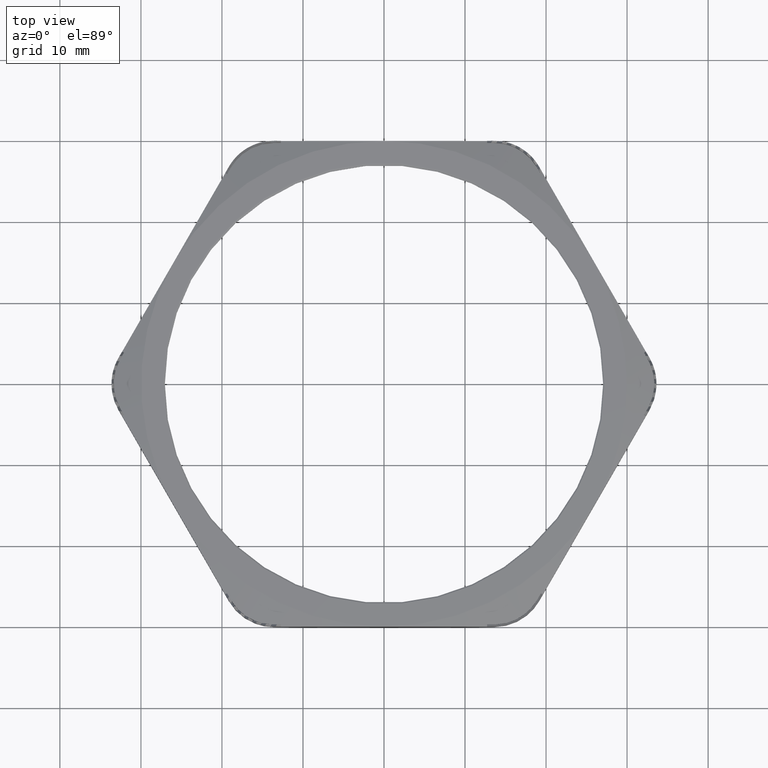
[diagram: clean part render]
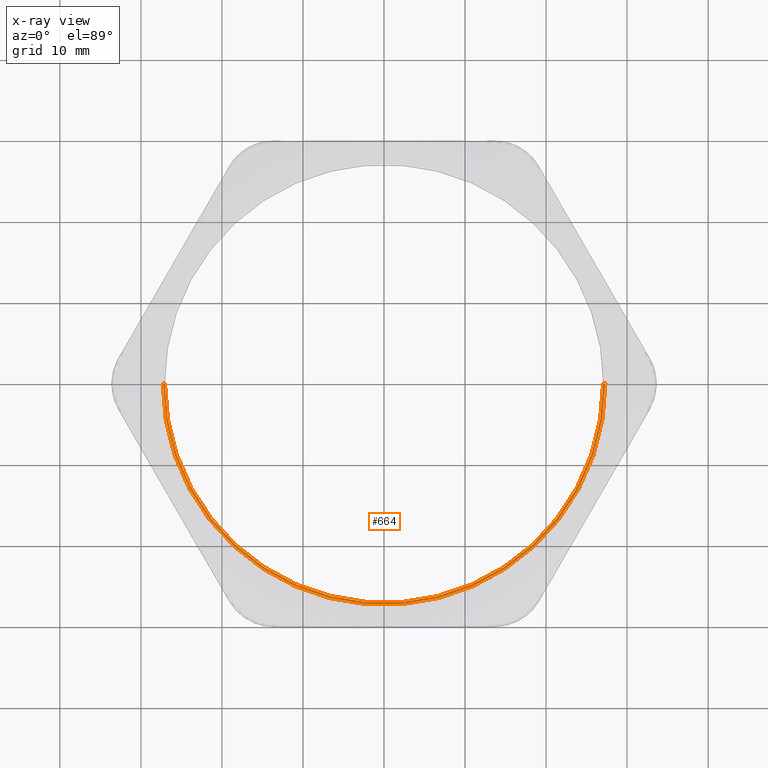
[diagram: x-ray — body ghosted, one internal face saturated and labeled with its STEP entity id]
A machine part, top view, then the same camera in x-ray: the body is ghosted and one INTERNAL B-rep face — a face not visible from any outside direction — is saturated and labeled: STEP entity #664.
In plain terms, the highlighted conical surface has half-angle 60 deg.
Its self-contained STEP definition (entity closure, byte-faithful):
#625 = EDGE_LOOP ( 'NONE', ( #665, #669, #672, #675 ) ) ;
#664 = ADVANCED_FACE ( 'NONE', ( #3998 ), #3997, .F. ) ;
#665 = ORIENTED_EDGE ( 'NONE', *, *, #666, .F. ) ;
#666 = EDGE_CURVE ( 'NONE', #667, #668, #3992, .T. ) ;
#667 = VERTEX_POINT ( 'NONE', #3987 ) ;
#668 = VERTEX_POINT ( 'NONE', #3986 ) ;
#669 = ORIENTED_EDGE ( 'NONE', *, *, #670, .T. ) ;
#670 = EDGE_CURVE ( 'NONE', #667, #671, #3985, .T. ) ;
#671 = VERTEX_POINT ( 'NONE', #3981 ) ;
#672 = ORIENTED_EDGE ( 'NONE', *, *, #673, .T. ) ;
#673 = EDGE_CURVE ( 'NONE', #671, #674, #3980, .T. ) ;
#674 = VERTEX_POINT ( 'NONE', #3975 ) ;
#675 = ORIENTED_EDGE ( 'NONE', *, *, #676, .F. ) ;
#676 = EDGE_CURVE ( 'NONE', #668, #674, #3974, .T. ) ;
#3971 = DIRECTION ( 'NONE',  ( 0.8660254037844366000, 0.0000000000000000000, 0.5000000000000033300 ) ) ;
#3972 = VECTOR ( 'NONE', #3971, 39.37007874015748100 ) ;
#3973 = CARTESIAN_POINT ( 'NONE',  ( 1.064999999999999900, 0.0000000000000000000, 0.1644529946162076000 ) ) ;
#3974 = LINE ( 'NONE', #3973, #3972 ) ;
#3975 = CARTESIAN_POINT ( 'NONE',  ( 1.075000000000000000, 1.316495309083404900E-016, 0.1702264973081039400 ) ) ;
#3976 = DIRECTION ( 'NONE',  ( 1.000000000000000000, 0.0000000000000000000, 0.0000000000000000000 ) ) ;
#3977 = DIRECTION ( 'NONE',  ( 0.0000000000000000000, 0.0000000000000000000, 1.000000000000000000 ) ) ;
#3978 = CARTESIAN_POINT ( 'NONE',  ( 0.0000000000000000000, 0.0000000000000000000, 0.1702264973081039400 ) ) ;
#3979 = AXIS2_PLACEMENT_3D ( 'NONE', #3978, #3977, #3976 ) ;
#3980 = CIRCLE ( 'NONE', #3979, 1.075000000000000000 ) ;
#3981 = CARTESIAN_POINT ( 'NONE',  ( -1.075000000000000000, 0.0000000000000000000, 0.1702264973081039400 ) ) ;
#3982 = DIRECTION ( 'NONE',  ( -0.8660254037844366000, 1.060575238724904700E-016, 0.5000000000000033300 ) ) ;
#3983 = VECTOR ( 'NONE', #3982, 39.37007874015748100 ) ;
#3984 = CARTESIAN_POINT ( 'NONE',  ( -1.064999999999999900, 1.304248841091931100E-016, 0.1644529946162076000 ) ) ;
#3985 = LINE ( 'NONE', #3984, #3983 ) ;
#3986 = CARTESIAN_POINT ( 'NONE',  ( 1.064999999999999900, 1.304248841091931100E-016, 0.1644529946162076000 ) ) ;
#3987 = CARTESIAN_POINT ( 'NONE',  ( -1.064999999999999900, 0.0000000000000000000, 0.1644529946162076000 ) ) ;
#3988 = DIRECTION ( 'NONE',  ( 1.000000000000000000, 0.0000000000000000000, 0.0000000000000000000 ) ) ;
#3989 = DIRECTION ( 'NONE',  ( 0.0000000000000000000, 0.0000000000000000000, 1.000000000000000000 ) ) ;
#3990 = CARTESIAN_POINT ( 'NONE',  ( 0.0000000000000000000, 0.0000000000000000000, 0.1644529946162076000 ) ) ;
#3991 = AXIS2_PLACEMENT_3D ( 'NONE', #3990, #3989, #3988 ) ;
#3992 = CIRCLE ( 'NONE', #3991, 1.064999999999999900 ) ;
#3993 = DIRECTION ( 'NONE',  ( 1.000000000000000000, 0.0000000000000000000, 0.0000000000000000000 ) ) ;
#3994 = DIRECTION ( 'NONE',  ( 0.0000000000000000000, 0.0000000000000000000, 1.000000000000000000 ) ) ;
#3995 = CARTESIAN_POINT ( 'NONE',  ( 0.0000000000000000000, 0.0000000000000000000, 0.1644529946162076000 ) ) ;
#3996 = AXIS2_PLACEMENT_3D ( 'NONE', #3995, #3994, #3993 ) ;
#3997 = CONICAL_SURFACE ( 'NONE', #3996, 1.064999999999999900, 1.047197551196593900 ) ;
#3998 = FACE_OUTER_BOUND ( 'NONE', #625, .T. ) ;